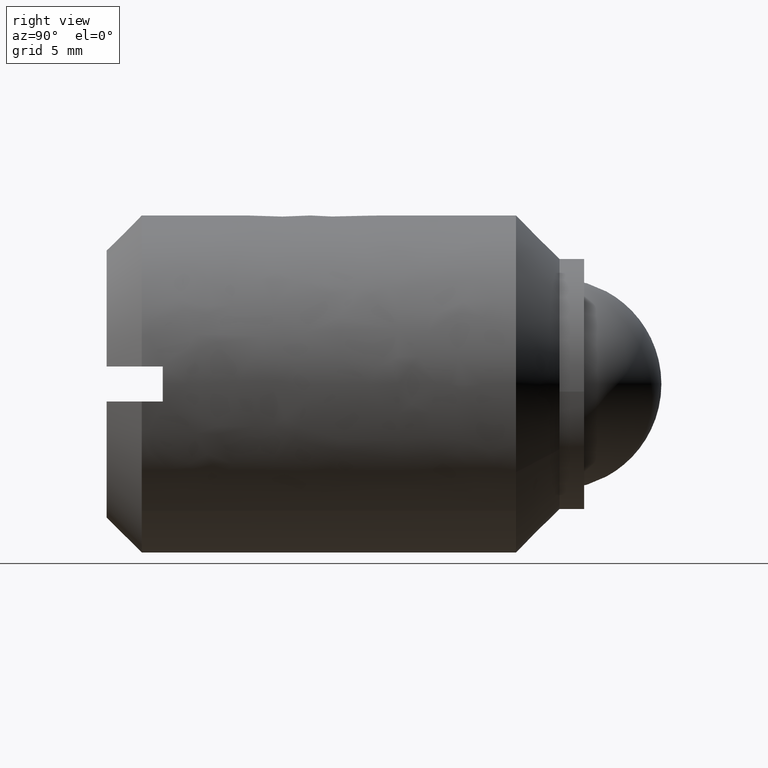
[diagram: clean part render]
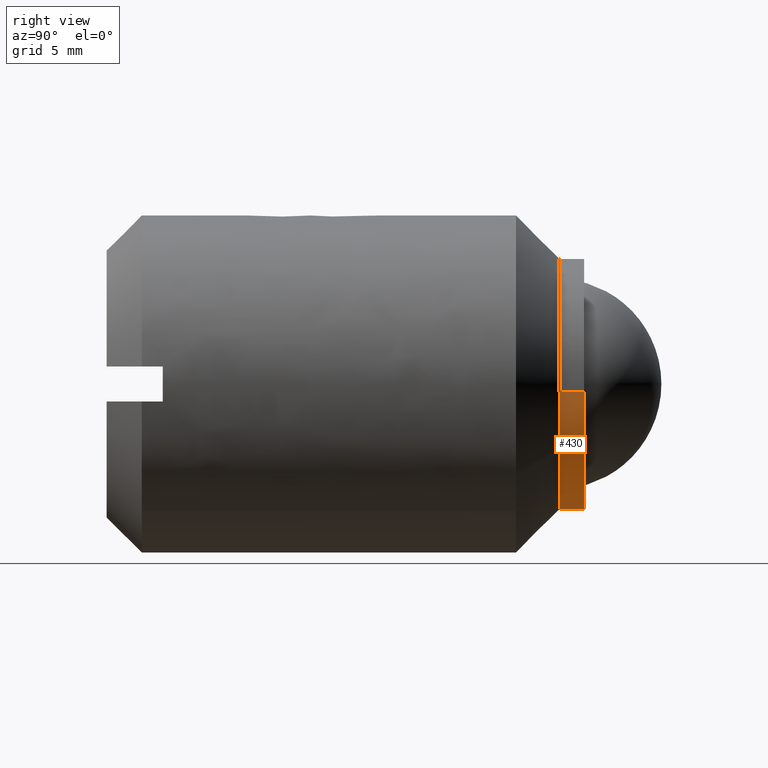
[diagram: same view with one face highlighted and labeled with its STEP entity id]
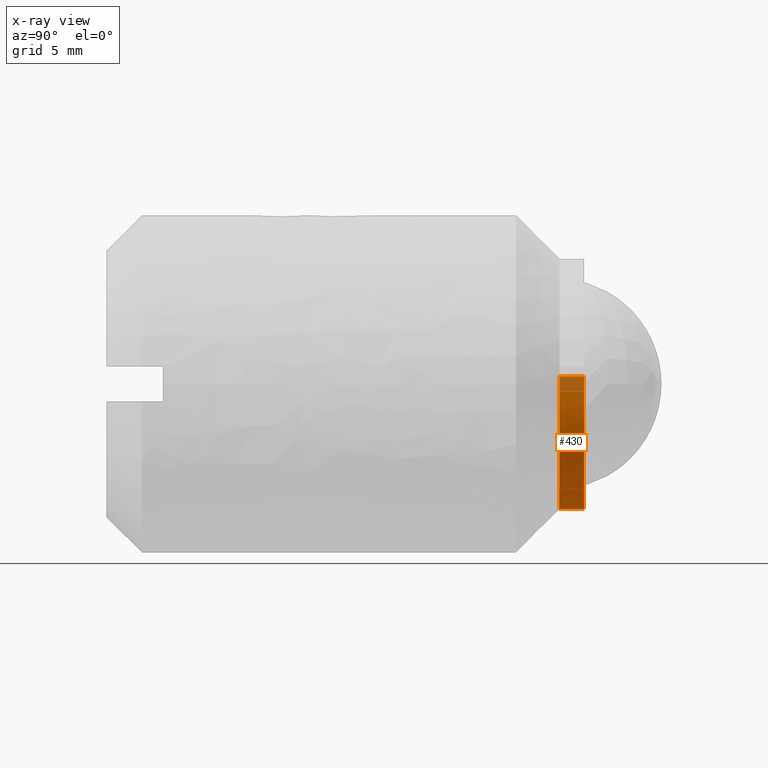
[diagram: x-ray of the same camera — body ghosted, the highlighted face saturated]
A machine part, right view. The second image highlights one B-rep face of the part: STEP entity #430.
The next image is the same camera in x-ray: the body ghosted, the highlighted face saturated — about 12% of this face is hidden behind the body in this view.
In plain terms, the highlighted face is a freeform B-spline surface patch.
Its self-contained STEP definition (entity closure, byte-faithful):
#252=CARTESIAN_POINT('',(8.883400014661509,-7.249999999999981,-0.543326954500055));
#253=VERTEX_POINT('',#252);
#271=CARTESIAN_POINT('',(8.883400044957174,-5.500000000000000,-0.543326459160618));
#272=VERTEX_POINT('',#271);
#273=CARTESIAN_POINT('',(8.883400044957174,-5.500000000000000,-0.543326459160618));
#274=CARTESIAN_POINT('',(8.883400014661509,-7.249999999999981,-0.543326954500055));
#275=QUASI_UNIFORM_CURVE('',1,(#273,#274),.UNSPECIFIED.,.F.,.U.);
#276=EDGE_CURVE('',#272,#253,#275,.T.);
#295=CARTESIAN_POINT('',(-8.883400044957174,-5.500000000000000,0.543326459160610));
#296=VERTEX_POINT('',#295);
#310=CARTESIAN_POINT('',(-8.883399705955075,-7.250000000002036,0.543332001866780));
#311=VERTEX_POINT('',#310);
#312=CARTESIAN_POINT('',(-8.883400044957174,-5.500000000000000,0.543326459160610));
#313=CARTESIAN_POINT('',(-8.883399705955075,-7.250000000002036,0.543332001866780));
#314=QUASI_UNIFORM_CURVE('',1,(#312,#313),.UNSPECIFIED.,.F.,.U.);
#315=EDGE_CURVE('',#296,#311,#314,.T.);
#333=CARTESIAN_POINT('',(-8.883399705954613,-5.456249999999996,0.543332001860225));
#334=CARTESIAN_POINT('',(-9.426731707814840,-5.456249999999995,-8.340067704094388));
#335=CARTESIAN_POINT('',(-0.543332001860227,-5.456249999999996,-8.883399705954615));
#336=CARTESIAN_POINT('',(8.340067704094386,-5.456249999999995,-9.426731707814842));
#337=CARTESIAN_POINT('',(8.883399705954613,-5.456249999999996,-0.543332001860230));
#338=CARTESIAN_POINT('',(-8.883399705954613,-7.294843750000104,0.543332001860225));
#339=CARTESIAN_POINT('',(-9.426731707814840,-7.294843750000104,-8.340067704094388));
#340=CARTESIAN_POINT('',(-0.543332001860227,-7.294843750000104,-8.883399705954615));
#341=CARTESIAN_POINT('',(8.340067704094386,-7.294843750000104,-9.426731707814842));
#342=CARTESIAN_POINT('',(8.883399705954613,-7.294843750000104,-0.543332001860230));
#350=(BOUNDED_SURFACE()B_SPLINE_SURFACE(2,1,((#333,#338),(#334,#339),(#335,#340),(#336,#341),(#337,#342)),.UNSPECIFIED.,.F.,.F.,.U.)B_SPLINE_SURFACE_WITH_KNOTS((3,2,3),(2,2),(0.0,14.746002820482181,29.492005640964351),(0.0,1.0),.UNSPECIFIED.)GEOMETRIC_REPRESENTATION_ITEM()RATIONAL_B_SPLINE_SURFACE(((1.0,1.0),(0.707106781186548,0.707106781186548),(1.0,1.0),(0.707106781186548,0.707106781186548),(1.0,1.0)))REPRESENTATION_ITEM('')SURFACE());
#351=CARTESIAN_POINT('',(7.585456119837495,-7.250000000000375,-4.655196607451158));
#352=VERTEX_POINT('',#351);
#353=CARTESIAN_POINT('',(7.585456119837495,-7.250000000000375,-4.655196607451158));
#354=CARTESIAN_POINT('',(8.747744593448731,-7.250000000000100,-2.761294167100793));
#355=CARTESIAN_POINT('',(8.883400014661509,-7.249999999999981,-0.543326954500055));
#363=(BOUNDED_CURVE()B_SPLINE_CURVE(2,(#353,#354,#355),.UNSPECIFIED.,.F.,.U.)B_SPLINE_CURVE_WITH_KNOTS((3,3),(0.160617616591238,0.239333060279419),.UNSPECIFIED.)CURVE()GEOMETRIC_REPRESENTATION_ITEM()RATIONAL_B_SPLINE_CURVE((0.865443586338462,0.891721089529175,0.976072251786210))REPRESENTATION_ITEM(''));
#364=EDGE_CURVE('',#352,#253,#363,.T.);
#365=ORIENTED_EDGE('',*,*,#364,.F.);
#366=CARTESIAN_POINT('',(0.0,-7.250000000000100,-8.900000000000002));
#367=VERTEX_POINT('',#366);
#368=CARTESIAN_POINT('',(0.0,-7.250000000000100,-8.900000000000002));
#369=CARTESIAN_POINT('',(4.980419054150716,-7.250000000000101,-8.900000000000002));
#370=CARTESIAN_POINT('',(7.585456119837495,-7.250000000000375,-4.655196607451158));
#378=(BOUNDED_CURVE()B_SPLINE_CURVE(2,(#368,#369,#370),.UNSPECIFIED.,.F.,.U.)B_SPLINE_CURVE_WITH_KNOTS((3,3),(0.0,0.160617616591238),.UNSPECIFIED.)CURVE()GEOMETRIC_REPRESENTATION_ITEM()RATIONAL_B_SPLINE_CURVE((1.0,0.811824757113790,0.865443586338462))REPRESENTATION_ITEM(''));
#379=EDGE_CURVE('',#367,#352,#378,.T.);
#380=ORIENTED_EDGE('',*,*,#379,.F.);
#381=CARTESIAN_POINT('',(-8.883399705955075,-7.250000000002036,0.543332001866780));
#382=CARTESIAN_POINT('',(-8.900000000000000,-7.250000000000100,0.271919593370481));
#383=CARTESIAN_POINT('',(-8.900000000000000,-7.250000000000100,-2.571673E-015));
#384=CARTESIAN_POINT('',(-8.900000000000000,-7.250000000000100,-8.900000000000002));
#385=CARTESIAN_POINT('',(0.0,-7.250000000000100,-8.900000000000002));
#393=(BOUNDED_CURVE()B_SPLINE_CURVE(2,(#381,#382,#383,#384,#385),.UNSPECIFIED.,.F.,.U.)B_SPLINE_CURVE_WITH_KNOTS((3,2,3),(0.739332962241463,0.750000000000000,1.0),.UNSPECIFIED.)CURVE()GEOMETRIC_REPRESENTATION_ITEM()RATIONAL_B_SPLINE_CURVE((0.976072041672119,0.987502787902790,1.0,0.707106781186548,1.0))REPRESENTATION_ITEM(''));
#394=EDGE_CURVE('',#311,#367,#393,.T.);
#395=ORIENTED_EDGE('',*,*,#394,.F.);
#396=ORIENTED_EDGE('',*,*,#315,.F.);
#397=CARTESIAN_POINT('',(0.0,-5.500000000000000,-8.900000000000002));
#398=VERTEX_POINT('',#397);
#399=CARTESIAN_POINT('',(-8.883400044957174,-5.500000000000000,0.543326459160610));
#400=CARTESIAN_POINT('',(-8.900000000000000,-5.500000000000001,0.271916814237170));
#401=CARTESIAN_POINT('',(-8.900000000000000,-5.500000000000000,-2.571673E-015));
#402=CARTESIAN_POINT('',(-8.900000000000000,-5.500000000000001,-8.900000000000002));
#403=CARTESIAN_POINT('',(0.0,-5.500000000000000,-8.900000000000002));
#411=(BOUNDED_CURVE()B_SPLINE_CURVE(2,(#399,#400,#401,#402,#403),.UNSPECIFIED.,.F.,.U.)B_SPLINE_CURVE_WITH_KNOTS((3,2,3),(0.739333069900650,0.750000000000000,1.0),.UNSPECIFIED.)CURVE()GEOMETRIC_REPRESENTATION_ITEM()RATIONAL_B_SPLINE_CURVE((0.976072272406359,0.987502914033373,1.0,0.707106781186548,1.0))REPRESENTATION_ITEM(''));
#412=EDGE_CURVE('',#296,#398,#411,.T.);
#413=ORIENTED_EDGE('',*,*,#412,.T.);
#414=CARTESIAN_POINT('',(0.0,-5.500000000000000,-8.900000000000002));
#415=CARTESIAN_POINT('',(8.372289229018241,-5.500000000000001,-8.900000000000002));
#416=CARTESIAN_POINT('',(8.883400044957174,-5.500000000000000,-0.543326459160618));
#424=(BOUNDED_CURVE()B_SPLINE_CURVE(2,(#414,#415,#416),.UNSPECIFIED.,.F.,.U.)B_SPLINE_CURVE_WITH_KNOTS((3,3),(0.0,0.239333069900650),.UNSPECIFIED.)CURVE()GEOMETRIC_REPRESENTATION_ITEM()RATIONAL_B_SPLINE_CURVE((1.0,0.719603867153174,0.976072272406359))REPRESENTATION_ITEM(''));
#425=EDGE_CURVE('',#398,#272,#424,.T.);
#426=ORIENTED_EDGE('',*,*,#425,.T.);
#427=ORIENTED_EDGE('',*,*,#276,.T.);
#428=EDGE_LOOP('',(#365,#380,#395,#396,#413,#426,#427));
#429=FACE_OUTER_BOUND('',#428,.T.);
#430=ADVANCED_FACE('',(#429),#350,.T.);